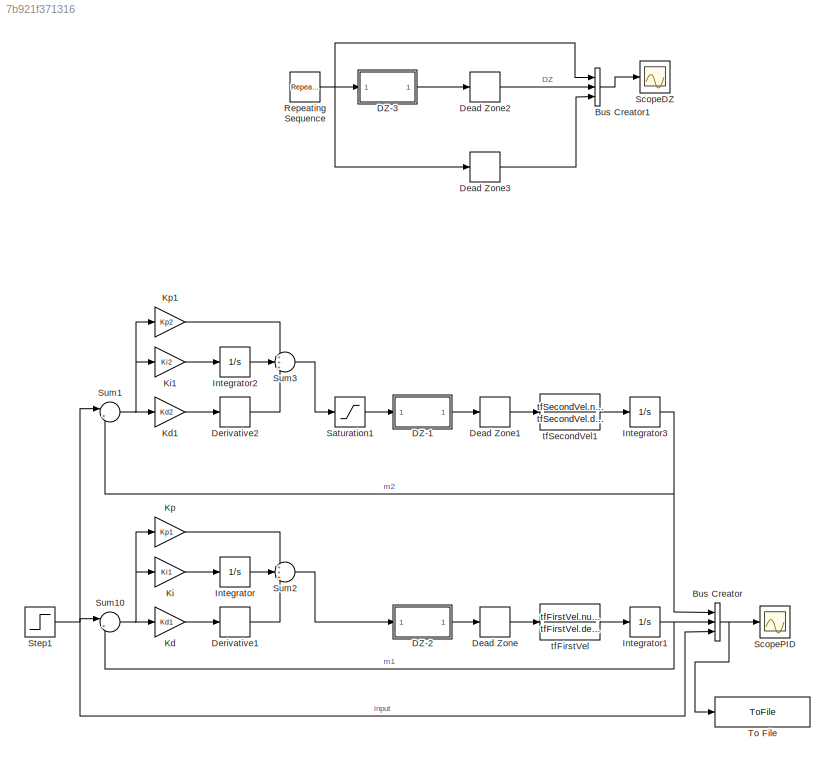
MODEL slx_7b921f371316
KIND model
BLOCK [BusCreator] Bus Creator
  DisplayOption = bar
  Inputs = 3
  Ports = [3, 1]
BLOCK [BusCreator] Bus Creator1
  DisplayOption = bar
  Inputs = 3
  Ports = [3, 1]
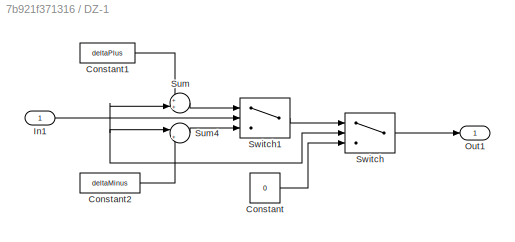
BLOCK [SubSystem] DZ-1
  Ports = [1, 1]
  RequestExecContextInheritance = off
BLOCK [Constant] DZ-1/Constant
  Value = 0
BLOCK [Constant] DZ-1/Constant1
  Value = deltaPlus
BLOCK [Constant] DZ-1/Constant2
  Value = deltaMinus
BLOCK [Inport] DZ-1/In1
  IconDisplay = Port number
BLOCK [Outport] DZ-1/Out1
  IconDisplay = Port number
BLOCK [Sum] DZ-1/Sum
  IconShape = round
  InputSameDT = off
  Inputs = ++|
  OutDataTypeStr = Inherit: Inherit via internal rule
  Ports = [2, 1]
  SaturateOnIntegerOverflow = off
BLOCK [Sum] DZ-1/Sum4
  IconShape = round
  InputSameDT = off
  Inputs = |+-
  OutDataTypeStr = Inherit: Inherit via internal rule
  Ports = [2, 1]
  SaturateOnIntegerOverflow = off
BLOCK [Switch] DZ-1/Switch
  Criteria = u2 ~= 0
  InputSameDT = off
  SaturateOnIntegerOverflow = off
BLOCK [Switch] DZ-1/Switch1
  Criteria = u2 > Threshold
  InputSameDT = off
  SaturateOnIntegerOverflow = off
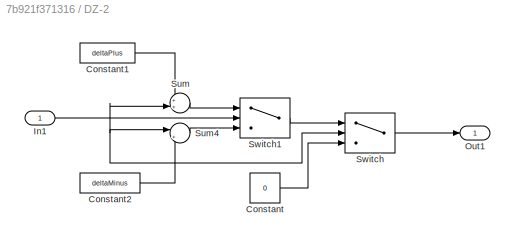
BLOCK [SubSystem] DZ-2
  Ports = [1, 1]
  RequestExecContextInheritance = off
BLOCK [Constant] DZ-2/Constant
  Value = 0
BLOCK [Constant] DZ-2/Constant1
  Value = deltaPlus
BLOCK [Constant] DZ-2/Constant2
  Value = deltaMinus
BLOCK [Inport] DZ-2/In1
  IconDisplay = Port number
BLOCK [Outport] DZ-2/Out1
  IconDisplay = Port number
BLOCK [Sum] DZ-2/Sum
  IconShape = round
  InputSameDT = off
  Inputs = ++|
  OutDataTypeStr = Inherit: Inherit via internal rule
  Ports = [2, 1]
  SaturateOnIntegerOverflow = off
BLOCK [Sum] DZ-2/Sum4
  IconShape = round
  InputSameDT = off
  Inputs = |+-
  OutDataTypeStr = Inherit: Inherit via internal rule
  Ports = [2, 1]
  SaturateOnIntegerOverflow = off
BLOCK [Switch] DZ-2/Switch
  Criteria = u2 ~= 0
  InputSameDT = off
  SaturateOnIntegerOverflow = off
BLOCK [Switch] DZ-2/Switch1
  Criteria = u2 > Threshold
  InputSameDT = off
  SaturateOnIntegerOverflow = off
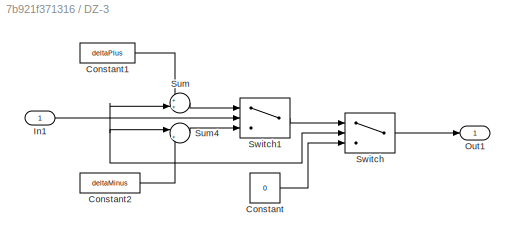
BLOCK [SubSystem] DZ-3
  Ports = [1, 1]
  RequestExecContextInheritance = off
BLOCK [Constant] DZ-3/Constant
  Value = 0
BLOCK [Constant] DZ-3/Constant1
  Value = deltaPlus
BLOCK [Constant] DZ-3/Constant2
  Value = deltaMinus
BLOCK [Inport] DZ-3/In1
  IconDisplay = Port number
BLOCK [Outport] DZ-3/Out1
  IconDisplay = Port number
BLOCK [Sum] DZ-3/Sum
  IconShape = round
  InputSameDT = off
  Inputs = ++|
  OutDataTypeStr = Inherit: Inherit via internal rule
  Ports = [2, 1]
  SaturateOnIntegerOverflow = off
BLOCK [Sum] DZ-3/Sum4
  IconShape = round
  InputSameDT = off
  Inputs = |+-
  OutDataTypeStr = Inherit: Inherit via internal rule
  Ports = [2, 1]
  SaturateOnIntegerOverflow = off
BLOCK [Switch] DZ-3/Switch
  Criteria = u2 ~= 0
  InputSameDT = off
  SaturateOnIntegerOverflow = off
BLOCK [Switch] DZ-3/Switch1
  Criteria = u2 > Threshold
  InputSameDT = off
  SaturateOnIntegerOverflow = off
BLOCK [DeadZone] Dead Zone
  LowerValue = deltaMinus
  UpperValue = deltaPlus
BLOCK [DeadZone] Dead Zone1
  LowerValue = deltaMinus
  UpperValue = deltaPlus
BLOCK [DeadZone] Dead Zone2
  LowerValue = deltaMinus
  UpperValue = deltaPlus
BLOCK [DeadZone] Dead Zone3
  LowerValue = deltaMinus
  UpperValue = deltaPlus
BLOCK [Derivative] Derivative1
BLOCK [Derivative] Derivative2
BLOCK [Integrator] Integrator
  Ports = [1, 1]
BLOCK [Integrator] Integrator1
  Ports = [1, 1]
BLOCK [Integrator] Integrator2
  Ports = [1, 1]
BLOCK [Integrator] Integrator3
  Ports = [1, 1]
BLOCK [Gain] Kd
  Gain = Kd1
  OutDataTypeStr = Inherit: Inherit via internal rule
  ParamDataTypeStr = Inherit: Inherit via internal rule
  SaturateOnIntegerOverflow = off
BLOCK [Gain] Kd1
  Gain = Kd2
  OutDataTypeStr = Inherit: Inherit via internal rule
  ParamDataTypeStr = Inherit: Inherit via internal rule
  SaturateOnIntegerOverflow = off
BLOCK [Gain] Ki
  Gain = Ki1
  OutDataTypeStr = Inherit: Inherit via internal rule
  ParamDataTypeStr = Inherit: Inherit via internal rule
  SaturateOnIntegerOverflow = off
BLOCK [Gain] Ki1
  Gain = Ki2
  OutDataTypeStr = Inherit: Inherit via internal rule
  ParamDataTypeStr = Inherit: Inherit via internal rule
  SaturateOnIntegerOverflow = off
BLOCK [Gain] Kp
  Gain = Kp1
  OutDataTypeStr = Inherit: Inherit via internal rule
  ParamDataTypeStr = Inherit: Inherit via internal rule
  SaturateOnIntegerOverflow = off
BLOCK [Gain] Kp1
  Gain = Kp2
  OutDataTypeStr = Inherit: Inherit via internal rule
  ParamDataTypeStr = Inherit: Inherit via internal rule
  SaturateOnIntegerOverflow = off
BLOCK [Reference] Repeating Sequence  REF=simulink/Sources/Repeating
Sequence
  Ports = [0, 1]
  SourceBlock = simulink/Sources/Repeating\nSequence
  SourceType = Repeating table
  rep_seq_t = [0 2]
  rep_seq_y = [0 2]
BLOCK [Saturate] Saturation1
  InputPortMap = u0
  LowerLimit = -10000000000000
  Ports = [1, 1]
  UpperLimit = 1000000000000
BLOCK [Scope] ScopeDZ
  Floating = off
  LegendLocations = 0.75769      0.9006      0.1966    0.053675
  NumInputPorts = 1
  Ports = [1]
  SaveName = ScopeData1
  ShowLegends = on
  YMax = 3
  YMin = 0
  ZoomMode = yonly
BLOCK [Scope] ScopePID
  Floating = off
  LegendLocations = 0.86971     0.90221    0.092206    0.052065
  NumInputPorts = 1
  Ports = [1]
  ShowLegends = on
  YMax = 1
  YMin = -1
  ZoomMode = yonly
BLOCK [Step] Step1
  SampleTime = 0
BLOCK [Sum] Sum1
  IconShape = round
  InputSameDT = off
  Inputs = |+-
  OutDataTypeStr = Inherit: Inherit via internal rule
  Ports = [2, 1]
  SaturateOnIntegerOverflow = off
BLOCK [Sum] Sum10
  IconShape = round
  InputSameDT = off
  Inputs = |+-
  OutDataTypeStr = Inherit: Inherit via internal rule
  Ports = [2, 1]
  SaturateOnIntegerOverflow = off
BLOCK [Sum] Sum2
  IconShape = round
  InputSameDT = off
  Inputs = +++
  OutDataTypeStr = Inherit: Inherit via internal rule
  Ports = [3, 1]
  SaturateOnIntegerOverflow = off
BLOCK [Sum] Sum3
  IconShape = round
  InputSameDT = off
  Inputs = +++
  OutDataTypeStr = Inherit: Inherit via internal rule
  Ports = [3, 1]
  SaturateOnIntegerOverflow = off
BLOCK [ToFile] To File
  Filename = simPIDControl.mat
  MatrixName = simData
  Ports = [1]
  SaveFormat = Timeseries
BLOCK [TransferFcn] tfFirstVel
  Denominator = tfFirstVel.den{1}
  Numerator = tfFirstVel.num{1}
BLOCK [TransferFcn] tfSecondVel1
  Denominator = tfSecondVel.den{1}
  Numerator = tfSecondVel.num{1}
LINE Bus Creator1:1 -> ScopeDZ:1
NET Bus Creator:1 -> ScopePID:1, To File:1
LINE DZ-1/Constant1:1 -> DZ-1/Sum:1
LINE DZ-1/Constant2:1 -> DZ-1/Sum4:2
LINE DZ-1/Constant:1 -> DZ-1/Switch:3
NET DZ-1/In1:1 -> DZ-1/Sum4:1, DZ-1/Sum:2, DZ-1/Switch1:2, DZ-1/Switch:2
LINE DZ-1/Sum4:1 -> DZ-1/Switch1:3
LINE DZ-1/Sum:1 -> DZ-1/Switch1:1
LINE DZ-1/Switch1:1 -> DZ-1/Switch:1
LINE DZ-1/Switch:1 -> DZ-1/Out1:1
LINE DZ-1:1 -> Dead Zone1:1
LINE DZ-2/Constant1:1 -> DZ-2/Sum:1
LINE DZ-2/Constant2:1 -> DZ-2/Sum4:2
LINE DZ-2/Constant:1 -> DZ-2/Switch:3
NET DZ-2/In1:1 -> DZ-2/Sum4:1, DZ-2/Sum:2, DZ-2/Switch1:2, DZ-2/Switch:2
LINE DZ-2/Sum4:1 -> DZ-2/Switch1:3
LINE DZ-2/Sum:1 -> DZ-2/Switch1:1
LINE DZ-2/Switch1:1 -> DZ-2/Switch:1
LINE DZ-2/Switch:1 -> DZ-2/Out1:1
LINE DZ-2:1 -> Dead Zone:1
LINE DZ-3/Constant1:1 -> DZ-3/Sum:1
LINE DZ-3/Constant2:1 -> DZ-3/Sum4:2
LINE DZ-3/Constant:1 -> DZ-3/Switch:3
NET DZ-3/In1:1 -> DZ-3/Sum4:1, DZ-3/Sum:2, DZ-3/Switch1:2, DZ-3/Switch:2
LINE DZ-3/Sum4:1 -> DZ-3/Switch1:3
LINE DZ-3/Sum:1 -> DZ-3/Switch1:1
LINE DZ-3/Switch1:1 -> DZ-3/Switch:1
LINE DZ-3/Switch:1 -> DZ-3/Out1:1
LINE DZ-3:1 -> Dead Zone2:1
LINE Dead Zone1:1 -> tfSecondVel1:1
LINE Dead Zone2:1 -> Bus Creator1:2
LINE Dead Zone3:1 -> Bus Creator1:3
LINE Dead Zone:1 -> tfFirstVel:1
LINE Derivative1:1 -> Sum2:3
LINE Derivative2:1 -> Sum3:3
NET Integrator1:1 -> Bus Creator:2, Sum10:2
LINE Integrator2:1 -> Sum3:2
NET Integrator3:1 -> Bus Creator:1, Sum1:2
LINE Integrator:1 -> Sum2:2
LINE Kd1:1 -> Derivative2:1
LINE Kd:1 -> Derivative1:1
LINE Ki1:1 -> Integrator2:1
LINE Ki:1 -> Integrator:1
LINE Kp1:1 -> Sum3:1
LINE Kp:1 -> Sum2:1
NET Repeating Sequence:1 -> Bus Creator1:1, DZ-3:1, Dead Zone3:1
LINE Saturation1:1 -> DZ-1:1
NET Step1:1 -> Bus Creator:3, Sum10:1, Sum1:1
NET Sum10:1 -> Kd:1, Ki:1, Kp:1
NET Sum1:1 -> Kd1:1, Ki1:1, Kp1:1
LINE Sum2:1 -> DZ-2:1
LINE Sum3:1 -> Saturation1:1
LINE tfFirstVel:1 -> Integrator1:1
LINE tfSecondVel1:1 -> Integrator3:1
note: NET lines group one-source signal fan-out (src -> all destinations, sorted); 1:1 wires keep LINE
